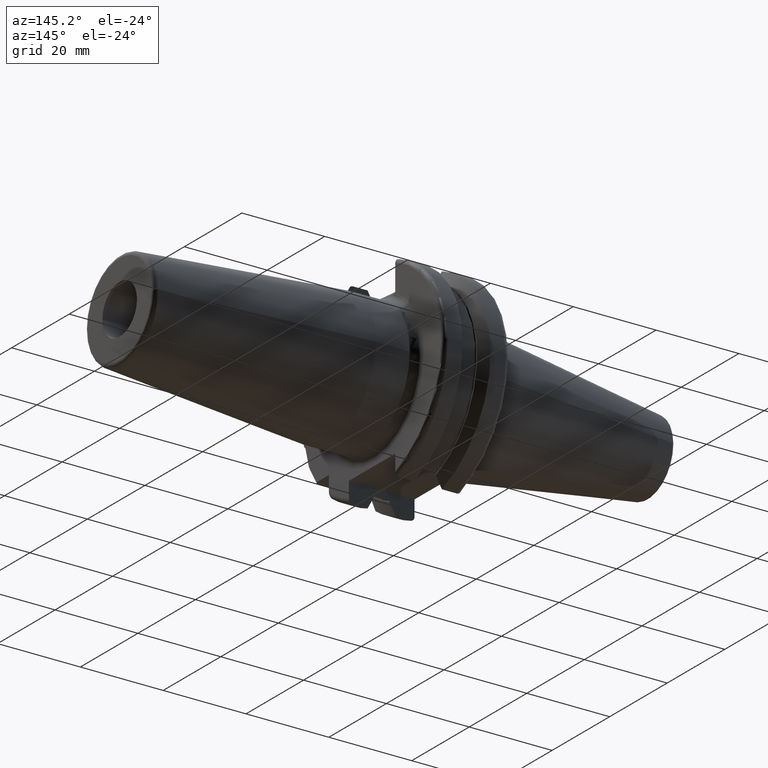
[diagram: clean part render]
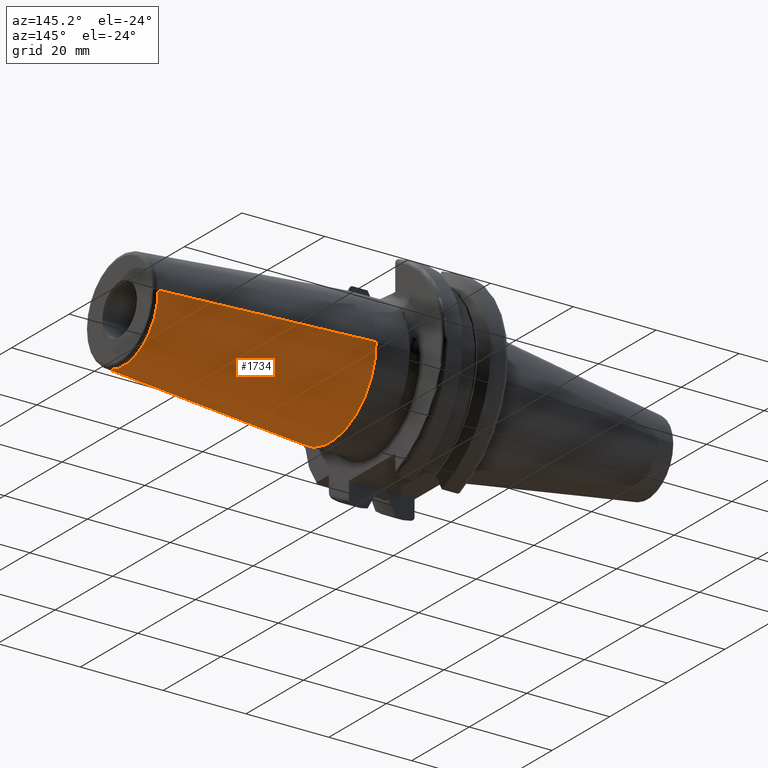
[diagram: same view with one face highlighted and labeled with its STEP entity id]
A machine part, auxiliary view. The second image highlights one B-rep face of the part: STEP entity #1734.
In plain terms, the highlighted conical surface has half-angle 4.5 deg.
Its self-contained STEP definition (entity closure, byte-faithful):
#238=CARTESIAN_POINT('',(2.917518105530E1,0.E0,0.E0));
#239=DIRECTION('',(-1.E0,0.E0,0.E0));
#240=DIRECTION('',(0.E0,1.E0,0.E0));
#241=AXIS2_PLACEMENT_3D('',#238,#239,#240);
#247=CARTESIAN_POINT('',(7.907845909573E1,0.E0,0.E0));
#248=DIRECTION('',(-1.E0,0.E0,0.E0));
#249=DIRECTION('',(0.E0,1.E0,0.E0));
#250=AXIS2_PLACEMENT_3D('',#247,#248,#249);
#252=DIRECTION('',(-9.969173337331E-1,7.845909572785E-2,1.333768581244E-14));
#253=VECTOR('',#252,5.005758888107E1);
#254=CARTESIAN_POINT('',(7.907845909573E1,1.207252684207E1,
-6.656929581452E-13));
#255=LINE('',#254,#253);
#256=DIRECTION('',(-9.969173337331E-1,-7.845909572785E-2,-1.322328875985E-14));
#257=VECTOR('',#256,5.005758888107E1);
#258=CARTESIAN_POINT('',(7.907845909573E1,-1.207252684207E1,
6.599665175175E-13));
#259=LINE('',#258,#257);
#1413=CARTESIAN_POINT('',(7.907845909573E1,1.207252684207E1,0.E0));
#1414=CARTESIAN_POINT('',(7.907845909573E1,-1.207252684207E1,0.E0));
#1415=VERTEX_POINT('',#1413);
#1416=VERTEX_POINT('',#1414);
#1421=CARTESIAN_POINT('',(2.917518105530E1,1.6E1,0.E0));
#1422=CARTESIAN_POINT('',(2.917518105530E1,-1.6E1,0.E0));
#1423=VERTEX_POINT('',#1421);
#1424=VERTEX_POINT('',#1422);
#1720=CARTESIAN_POINT('',(5.412682007551E1,0.E0,0.E0));
#1721=DIRECTION('',(-1.E0,0.E0,0.E0));
#1722=DIRECTION('',(0.E0,1.E0,0.E0));
#1723=AXIS2_PLACEMENT_3D('',#1720,#1721,#1722);
#1724=CONICAL_SURFACE('',#1723,1.403626342104E1,4.5E0);
#1726=ORIENTED_EDGE('',*,*,#1725,.F.);
#1728=ORIENTED_EDGE('',*,*,#1727,.T.);
#1729=ORIENTED_EDGE('',*,*,#1714,.T.);
#1731=ORIENTED_EDGE('',*,*,#1730,.F.);
#1732=EDGE_LOOP('',(#1726,#1728,#1729,#1731));
#1733=FACE_OUTER_BOUND('',#1732,.F.);
#1734=ADVANCED_FACE('',(#1733),#1724,.T.);
#242=CIRCLE('',#241,1.6E1);
#251=CIRCLE('',#250,1.207252684207E1);
#1714=EDGE_CURVE('',#1423,#1424,#242,.T.);
#1725=EDGE_CURVE('',#1415,#1416,#251,.T.);
#1727=EDGE_CURVE('',#1415,#1423,#255,.T.);
#1730=EDGE_CURVE('',#1416,#1424,#259,.T.);